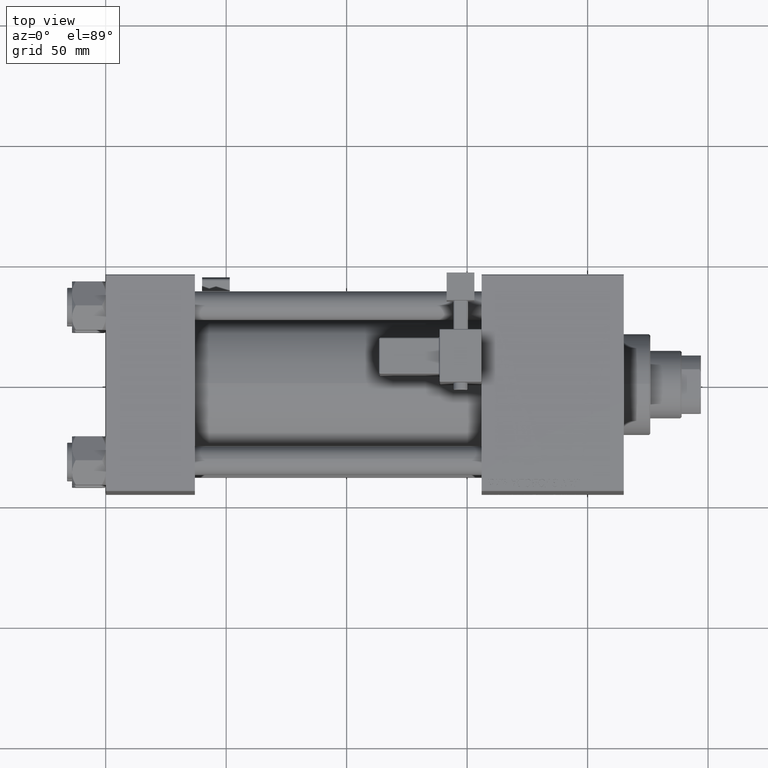
[diagram: clean part render]
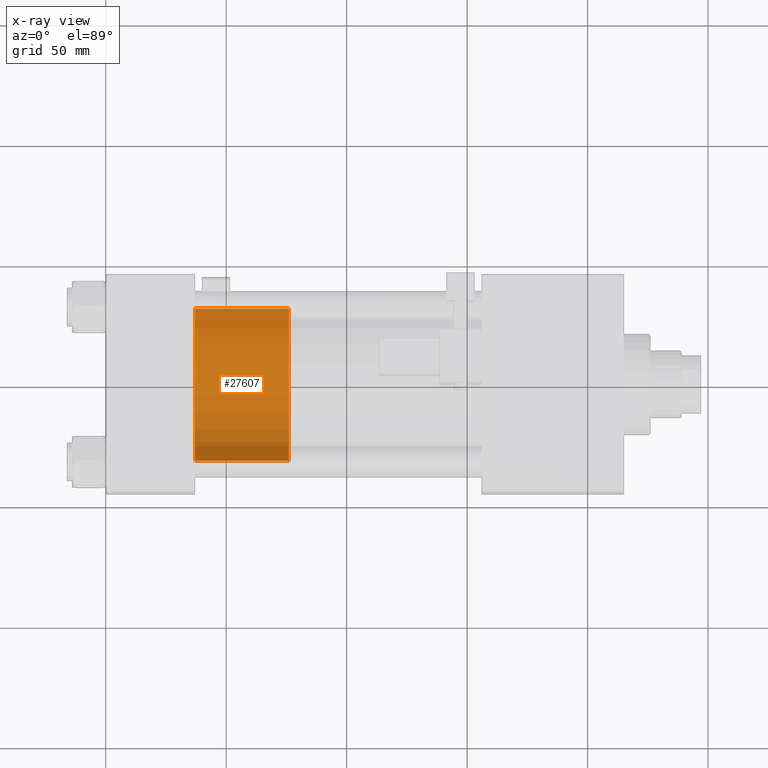
[diagram: x-ray — body ghosted, one internal face saturated and labeled with its STEP entity id]
A machine part, top view, then the same camera in x-ray: the body is ghosted and one INTERNAL B-rep face — a face not visible from any outside direction — is saturated and labeled: STEP entity #27607.
In plain terms, the highlighted cylindrical surface (partial cylindrical patch) has radius 31.5 mm, axis along (-1, 0, 0).
Its self-contained STEP definition (entity closure, byte-faithful):
#718 = CIRCLE ( 'NONE', #30259, 31.50000000000000000 ) ;
#746 = CARTESIAN_POINT ( 'NONE',  ( -31.50000000000000000, 0.000000000000000000, 39.00000000000000000 ) ) ;
#785 = EDGE_LOOP ( 'NONE', ( #35560, #16037, #16282, #17280 ) ) ;
#2353 = VECTOR ( 'NONE', #20030, 1000.000000000000000 ) ;
#5461 = CYLINDRICAL_SURFACE ( 'NONE', #20849, 31.50000000000000000 ) ;
#8886 = DIRECTION ( 'NONE',  ( 0.000000000000000000, 0.000000000000000000, 1.000000000000000000 ) ) ;
#8916 = FACE_OUTER_BOUND ( 'NONE', #785, .T. ) ;
#10501 = LINE ( 'NONE', #43591, #19148 ) ;
#10981 = CARTESIAN_POINT ( 'NONE',  ( 31.50000000000000000, 3.857637417314162689E-15, 0.000000000000000000 ) ) ;
#10997 = AXIS2_PLACEMENT_3D ( 'NONE', #43672, #19825, #35983 ) ;
#11090 = CARTESIAN_POINT ( 'NONE',  ( -31.50000000000000000, 0.000000000000000000, 0.000000000000000000 ) ) ;
#16037 = ORIENTED_EDGE ( 'NONE', *, *, #28477, .T. ) ;
#16282 = ORIENTED_EDGE ( 'NONE', *, *, #44766, .T. ) ;
#17280 = ORIENTED_EDGE ( 'NONE', *, *, #47370, .F. ) ;
#19148 = VECTOR ( 'NONE', #38312, 1000.000000000000000 ) ;
#19825 = DIRECTION ( 'NONE',  ( 0.000000000000000000, 0.000000000000000000, 1.000000000000000000 ) ) ;
#20030 = DIRECTION ( 'NONE',  ( -0.000000000000000000, -0.000000000000000000, -1.000000000000000000 ) ) ;
#20556 = CARTESIAN_POINT ( 'NONE',  ( 0.000000000000000000, 0.000000000000000000, 0.000000000000000000 ) ) ;
#20849 = AXIS2_PLACEMENT_3D ( 'NONE', #50009, #25611, #34084 ) ;
#21798 = CARTESIAN_POINT ( 'NONE',  ( 31.50000000000000000, 3.857637417314162689E-15, 39.00000000000000000 ) ) ;
#23284 = VERTEX_POINT ( 'NONE', #10981 ) ;
#25611 = DIRECTION ( 'NONE',  ( -0.000000000000000000, -0.000000000000000000, -1.000000000000000000 ) ) ;
#27607 = ADVANCED_FACE ( 'NONE', ( #8916 ), #5461, .T. ) ;
#27997 = LINE ( 'NONE', #44142, #2353 ) ;
#28477 = EDGE_CURVE ( 'NONE', #41241, #23284, #10501, .T. ) ;
#30259 = AXIS2_PLACEMENT_3D ( 'NONE', #20556, #8886, #33536 ) ;
#31276 = VERTEX_POINT ( 'NONE', #746 ) ;
#33536 = DIRECTION ( 'NONE',  ( 1.000000000000000000, 0.000000000000000000, 0.000000000000000000 ) ) ;
#34084 = DIRECTION ( 'NONE',  ( -1.000000000000000000, 0.000000000000000000, 0.000000000000000000 ) ) ;
#35560 = ORIENTED_EDGE ( 'NONE', *, *, #40430, .F. ) ;
#35983 = DIRECTION ( 'NONE',  ( 1.000000000000000000, 0.000000000000000000, 0.000000000000000000 ) ) ;
#38312 = DIRECTION ( 'NONE',  ( -0.000000000000000000, -0.000000000000000000, -1.000000000000000000 ) ) ;
#40276 = VERTEX_POINT ( 'NONE', #11090 ) ;
#40430 = EDGE_CURVE ( 'NONE', #41241, #31276, #41501, .T. ) ;
#41241 = VERTEX_POINT ( 'NONE', #21798 ) ;
#41501 = CIRCLE ( 'NONE', #10997, 31.50000000000000000 ) ;
#43591 = CARTESIAN_POINT ( 'NONE',  ( 31.50000000000000000, 3.857637417314162689E-15, 39.00000000000000000 ) ) ;
#43672 = CARTESIAN_POINT ( 'NONE',  ( 0.000000000000000000, 0.000000000000000000, 39.00000000000000000 ) ) ;
#44142 = CARTESIAN_POINT ( 'NONE',  ( -31.50000000000000000, 0.000000000000000000, 39.00000000000000000 ) ) ;
#44766 = EDGE_CURVE ( 'NONE', #23284, #40276, #718, .T. ) ;
#47370 = EDGE_CURVE ( 'NONE', #31276, #40276, #27997, .T. ) ;
#50009 = CARTESIAN_POINT ( 'NONE',  ( 0.000000000000000000, 0.000000000000000000, 39.00000000000000000 ) ) ;